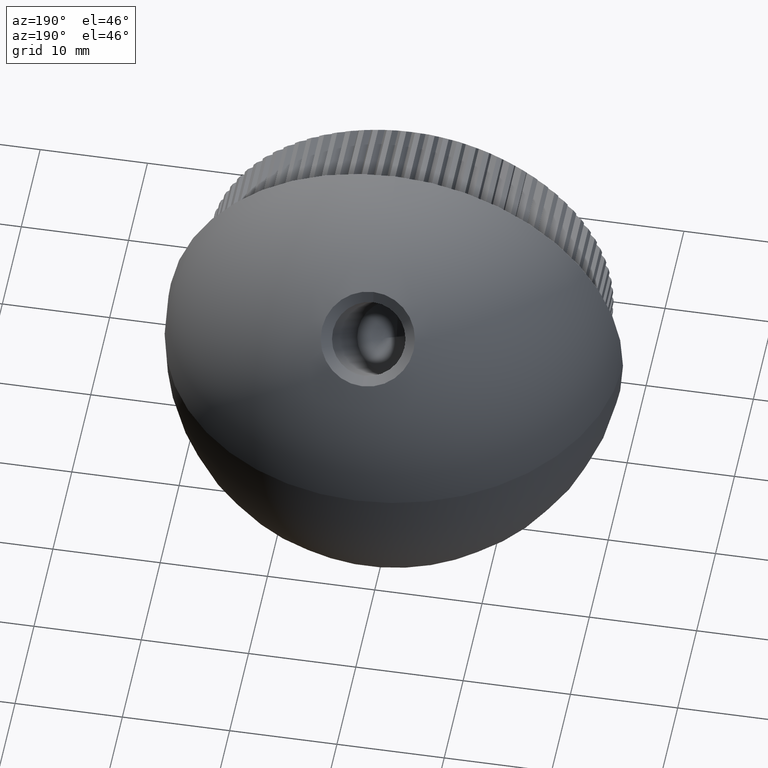
[diagram: clean part render]
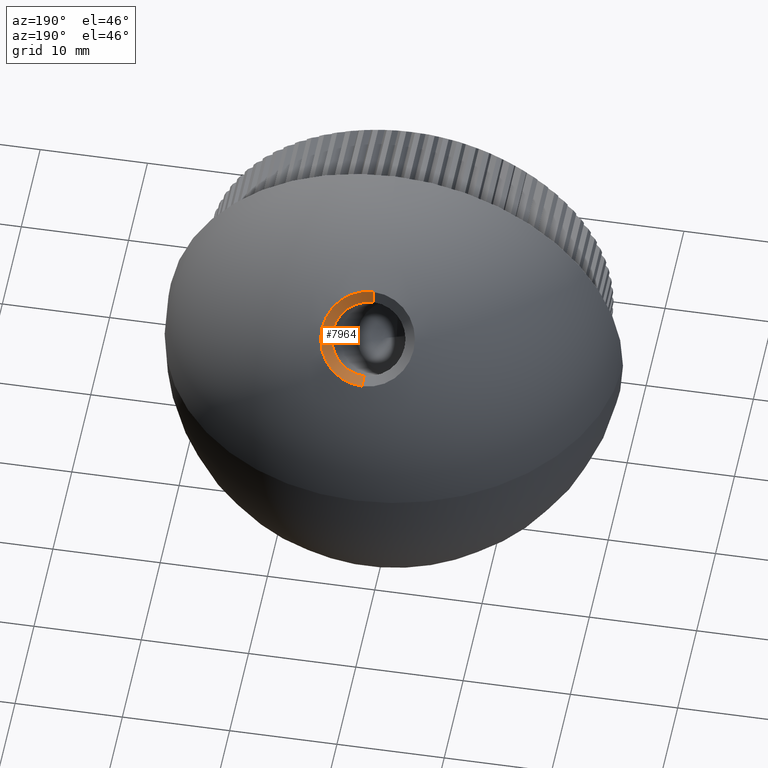
[diagram: same view with one face highlighted and labeled with its STEP entity id]
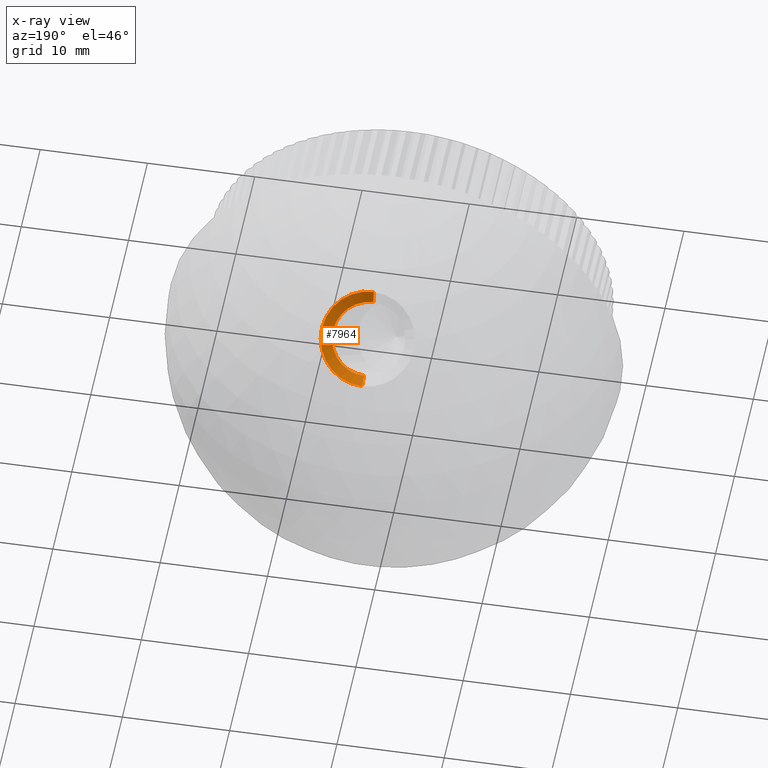
[diagram: x-ray of the same camera — body ghosted, the highlighted face saturated]
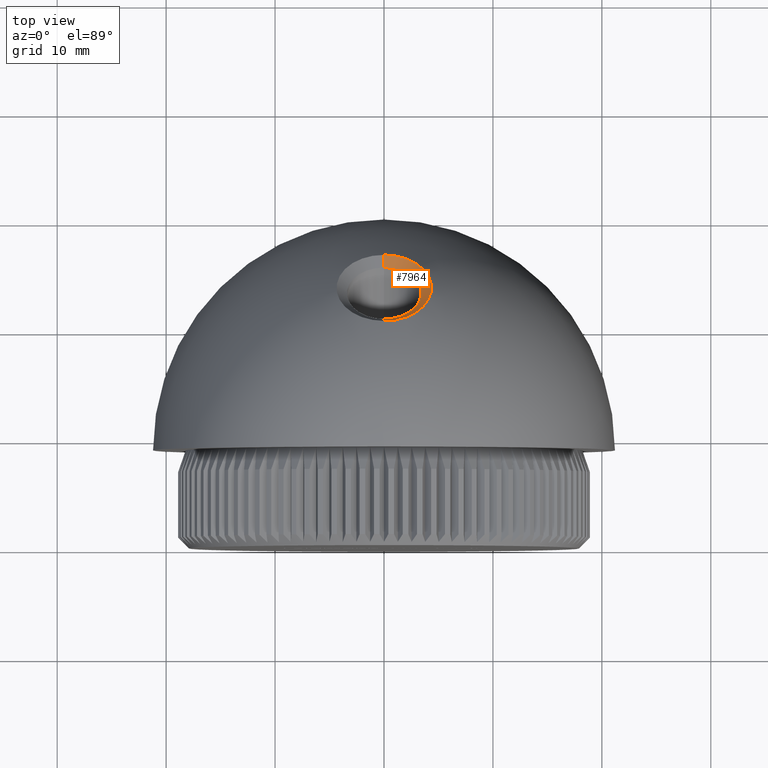
[diagram: same view with one face highlighted and labeled with its STEP entity id]
A machine part, auxiliary view. The second image highlights one B-rep face of the part: STEP entity #7964.
The next image is the same camera in x-ray: the body ghosted, the highlighted face saturated — about 0% of this face is hidden behind the body in this view.
A second angle (top view) of the same face is appended — the face is thin or edge-on in the first view.
In plain terms, the highlighted conical surface has half-angle 54.229 deg.
Its self-contained STEP definition (entity closure, byte-faithful):
#1163 = CARTESIAN_POINT ( 'NONE',  ( -6.800464286022144300E-016, 25.58453332225147700, 11.77620721018291200 ) ) ;
#1226 = VERTEX_POINT ( 'NONE', #11817 ) ;
#1255 = DIRECTION ( 'NONE',  ( 0.0000000000000000000, -0.7071067811865450200, 0.7071067811865500200 ) ) ;
#1809 = FACE_OUTER_BOUND ( 'NONE', #4983, .T. ) ;
#3328 = CARTESIAN_POINT ( 'NONE',  ( -1.149114390993522900E-027, 23.67003839562131200, 14.67003839562121000 ) ) ;
#3898 = LINE ( 'NONE', #1163, #22518 ) ;
#4705 = DIRECTION ( 'NONE',  ( 0.0000000000000000000, 0.7071067811865500200, 0.7071067811865450200 ) ) ;
#4983 = EDGE_LOOP ( 'NONE', ( #13322, #8377, #20161, #12013 ) ) ;
#5011 = CARTESIAN_POINT ( 'NONE',  ( -5.623350420124045700E-016, 26.75386288333099600, 11.58621390791150900 ) ) ;
#6795 = DIRECTION ( 'NONE',  ( 0.0000000000000000000, 0.7071067811865449100, -0.7071067811865500200 ) ) ;
#7964 = ADVANCED_FACE ( 'NONE', ( #1809 ), #10281, .F. ) ;
#8377 = ORIENTED_EDGE ( 'NONE', *, *, #12184, .F. ) ;
#9050 = EDGE_CURVE ( 'NONE', #20520, #1226, #20688, .T. ) ;
#10241 = DIRECTION ( 'NONE',  ( 9.936266710375372700E-017, 0.9870557749608608300, -0.1603773584905748800 ) ) ;
#10281 = CONICAL_SURFACE ( 'NONE', #16845, 3.399999999999992400, 0.9464711116459212400 ) ;
#10443 = DIRECTION ( 'NONE',  ( -0.0000000000000000000, -0.7071067811865500200, -0.7071067811865450200 ) ) ;
#10522 = EDGE_CURVE ( 'NONE', #16774, #1226, #17272, .T. ) ;
#11063 = VERTEX_POINT ( 'NONE', #21753 ) ;
#11123 = CARTESIAN_POINT ( 'NONE',  ( -1.096426340312313600E-015, 20.77620721018298500, 16.58453332225144200 ) ) ;
#11817 = CARTESIAN_POINT ( 'NONE',  ( -1.096426340312313600E-015, 20.58621390791158500, 17.75386288333096000 ) ) ;
#11859 = AXIS2_PLACEMENT_3D ( 'NONE', #3328, #10443, #6795 ) ;
#12013 = ORIENTED_EDGE ( 'NONE', *, *, #9050, .F. ) ;
#12184 = EDGE_CURVE ( 'NONE', #16774, #11063, #15535, .T. ) ;
#12760 = DIRECTION ( 'NONE',  ( 0.0000000000000000000, -0.7071067811865450200, 0.7071067811865500200 ) ) ;
#13301 = VECTOR ( 'NONE', #18107, 1000.000000000000100 ) ;
#13322 = ORIENTED_EDGE ( 'NONE', *, *, #20011, .F. ) ;
#13809 = CARTESIAN_POINT ( 'NONE',  ( -1.096426340312313600E-015, 23.18037026621723100, 14.18037026621717800 ) ) ;
#14124 = DIRECTION ( 'NONE',  ( 0.0000000000000000000, 0.7071067811865500200, 0.7071067811865450200 ) ) ;
#14575 = CARTESIAN_POINT ( 'NONE',  ( -1.096426340312313600E-015, 20.77620721018298500, 16.58453332225144200 ) ) ;
#15535 = CIRCLE ( 'NONE', #22009, 3.399999999999992400 ) ;
#16774 = VERTEX_POINT ( 'NONE', #11123 ) ;
#16845 = AXIS2_PLACEMENT_3D ( 'NONE', #21582, #14124, #12760 ) ;
#17272 = LINE ( 'NONE', #14575, #13301 ) ;
#18107 = DIRECTION ( 'NONE',  ( 0.0000000000000000000, -0.1603773584905680000, 0.9870557749608619400 ) ) ;
#20011 = EDGE_CURVE ( 'NONE', #11063, #20520, #3898, .T. ) ;
#20161 = ORIENTED_EDGE ( 'NONE', *, *, #10522, .T. ) ;
#20520 = VERTEX_POINT ( 'NONE', #5011 ) ;
#20688 = CIRCLE ( 'NONE', #11859, 4.361186414497343100 ) ;
#21582 = CARTESIAN_POINT ( 'NONE',  ( -1.096426340312313600E-015, 23.18037026621723100, 14.18037026621717800 ) ) ;
#21753 = CARTESIAN_POINT ( 'NONE',  ( -6.800464286022144300E-016, 25.58453332225147700, 11.77620721018291200 ) ) ;
#22009 = AXIS2_PLACEMENT_3D ( 'NONE', #13809, #4705, #1255 ) ;
#22518 = VECTOR ( 'NONE', #10241, 1000.000000000000100 ) ;